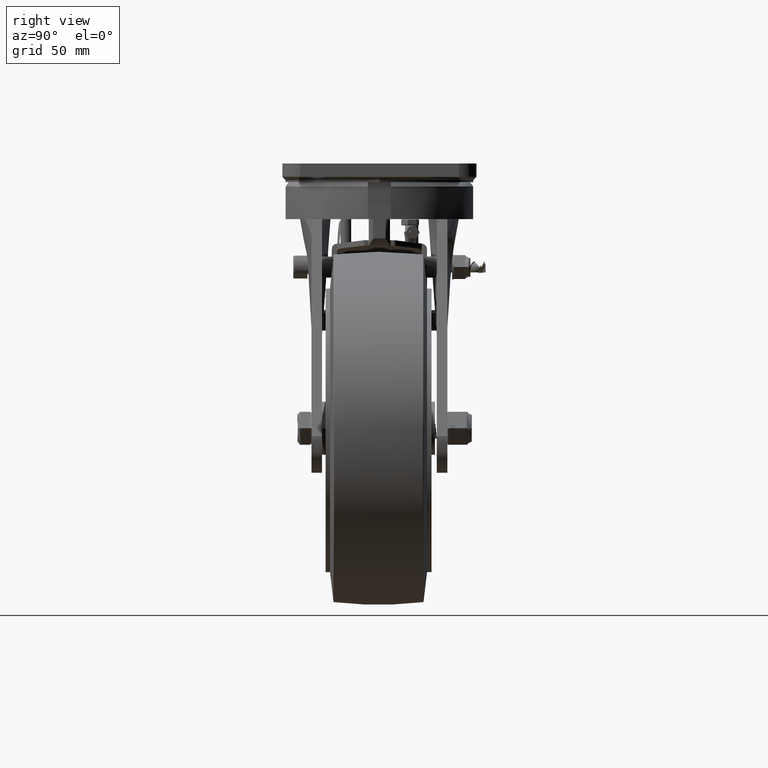
[diagram: clean part render]
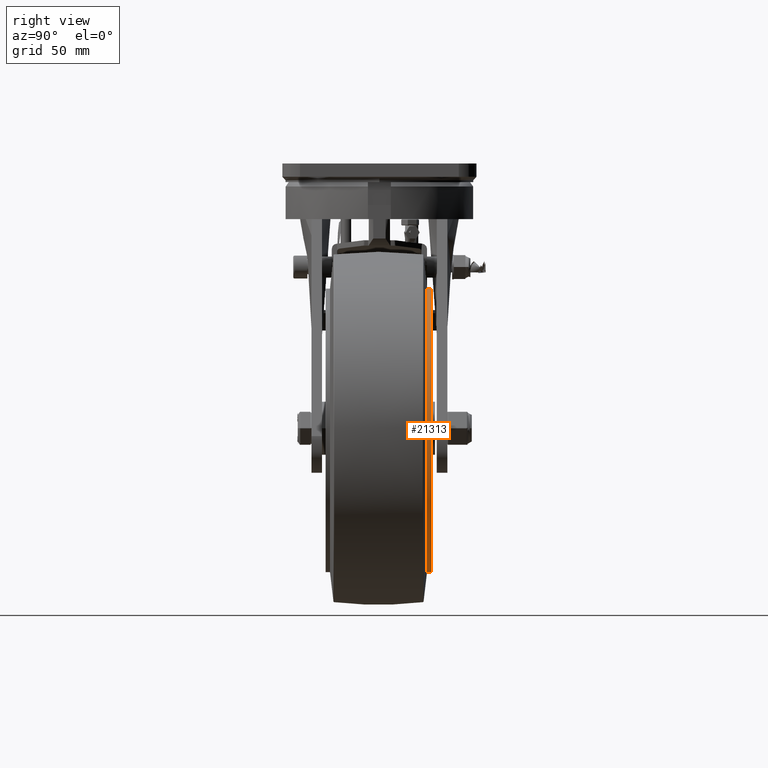
[diagram: same view with one face highlighted and labeled with its STEP entity id]
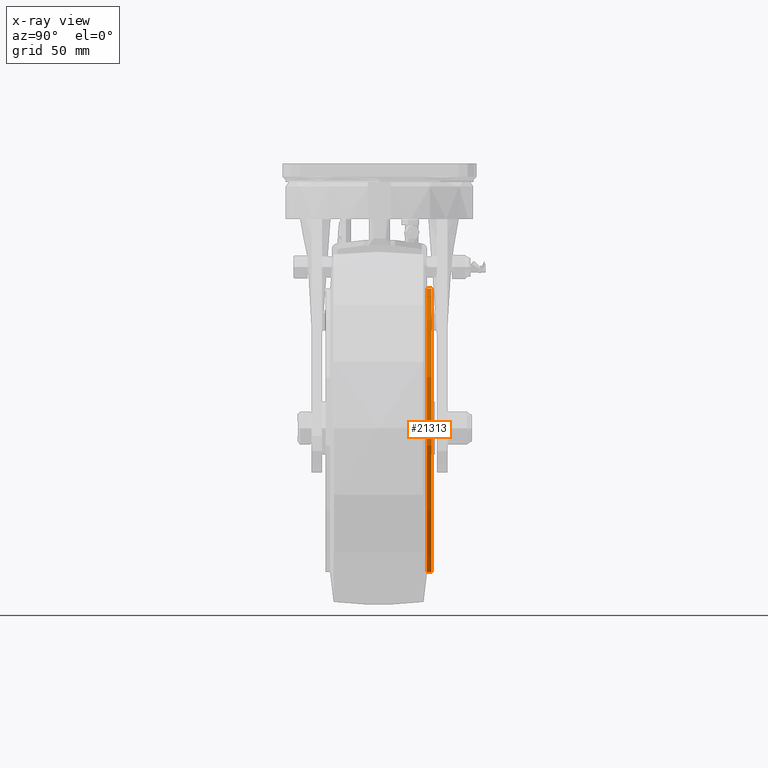
[diagram: x-ray of the same camera — body ghosted, the highlighted face saturated]
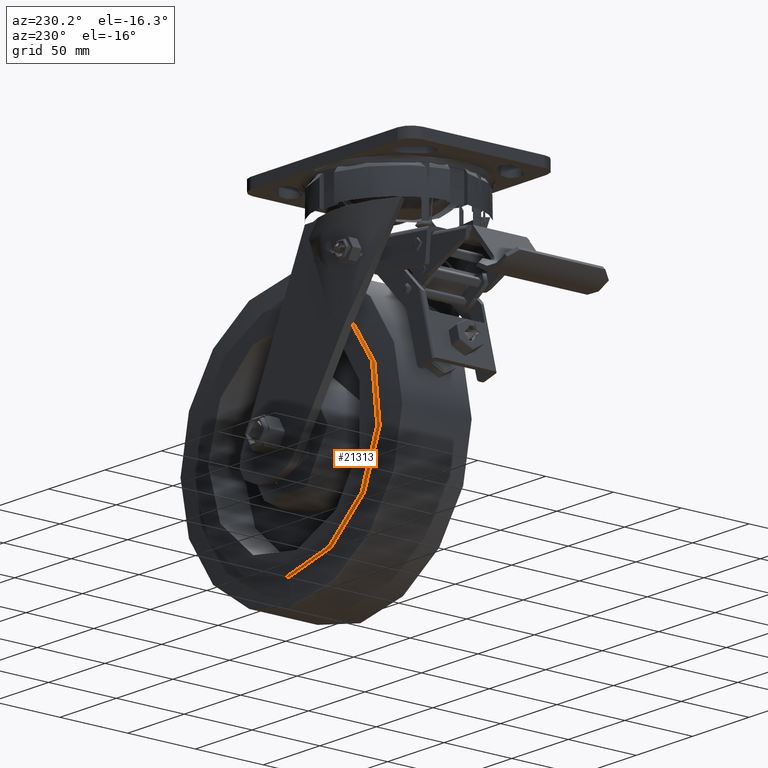
[diagram: same view with one face highlighted and labeled with its STEP entity id]
A machine part, right view. The second image highlights one B-rep face of the part: STEP entity #21313.
The next image is the same camera in x-ray: the body ghosted, the highlighted face saturated — about 0% of this face is hidden behind the body in this view.
A second angle (auxiliary view) of the same face is appended — the face is thin or edge-on in the first view.
In plain terms, the highlighted cylindrical surface (bore or boss wall) has radius 81.5 mm, axis along (-0, 1, -0).
Its self-contained STEP definition (entity closure, byte-faithful):
#2828=FACE_OUTER_BOUND('',#4154,.T.);
#4154=EDGE_LOOP('',(#16400,#16401,#16402,#16403));
#5669=LINE('',#55096,#7102);
#7102=VECTOR('',#26955,81.5);
#8217=CIRCLE('',#23364,81.5);
#8218=CIRCLE('',#23365,81.5);
#9580=VERTEX_POINT('',#55093);
#9581=VERTEX_POINT('',#55095);
#12071=EDGE_CURVE('',#9580,#9580,#8217,.T.);
#12072=EDGE_CURVE('',#9580,#9581,#5669,.T.);
#12073=EDGE_CURVE('',#9581,#9581,#8218,.T.);
#16400=ORIENTED_EDGE('',*,*,#12071,.F.);
#16401=ORIENTED_EDGE('',*,*,#12072,.T.);
#16402=ORIENTED_EDGE('',*,*,#12073,.T.);
#16403=ORIENTED_EDGE('',*,*,#12072,.F.);
#20669=CYLINDRICAL_SURFACE('',#23363,81.5);
#21313=ADVANCED_FACE('',(#2828),#20669,.T.);
#23363=AXIS2_PLACEMENT_3D('',#55092,#26951,#26952);
#23364=AXIS2_PLACEMENT_3D('',#55094,#26953,#26954);
#23365=AXIS2_PLACEMENT_3D('',#55097,#26956,#26957);
#26951=DIRECTION('center_axis',(-3.49148336110938E-15,1.,-1.84815196644521E-44));
#26952=DIRECTION('ref_axis',(-5.29331454656562E-30,-4.97841222228891E-60,
1.));
#26953=DIRECTION('center_axis',(-3.49148336110938E-15,1.,-1.84815196644521E-44));
#26954=DIRECTION('ref_axis',(-5.29331454656562E-30,-4.97841222228891E-60,
1.));
#26955=DIRECTION('',(3.49148336110938E-15,-1.,1.84815196644521E-44));
#26956=DIRECTION('center_axis',(-3.49148336110938E-15,1.,-1.84815196644521E-44));
#26957=DIRECTION('ref_axis',(-5.29331454656562E-30,-4.97841222228891E-60,
1.));
#55092=CARTESIAN_POINT('Origin',(-9.69106996799411E-14,28.75,-5.31343690353E-43));
#55093=CARTESIAN_POINT('',(-9.12941824682765E-14,30.,-81.5));
#55094=CARTESIAN_POINT('Origin',(-1.01275053881328E-13,30.,-5.54445589933565E-43));
#55095=CARTESIAN_POINT('',(-8.2565474065503E-14,27.5,-81.5));
#55096=CARTESIAN_POINT('',(-1.06891571092992E-13,28.75,-81.5));
#55097=CARTESIAN_POINT('Origin',(-9.25463454785544E-14,27.5,-5.08241790772435E-43));